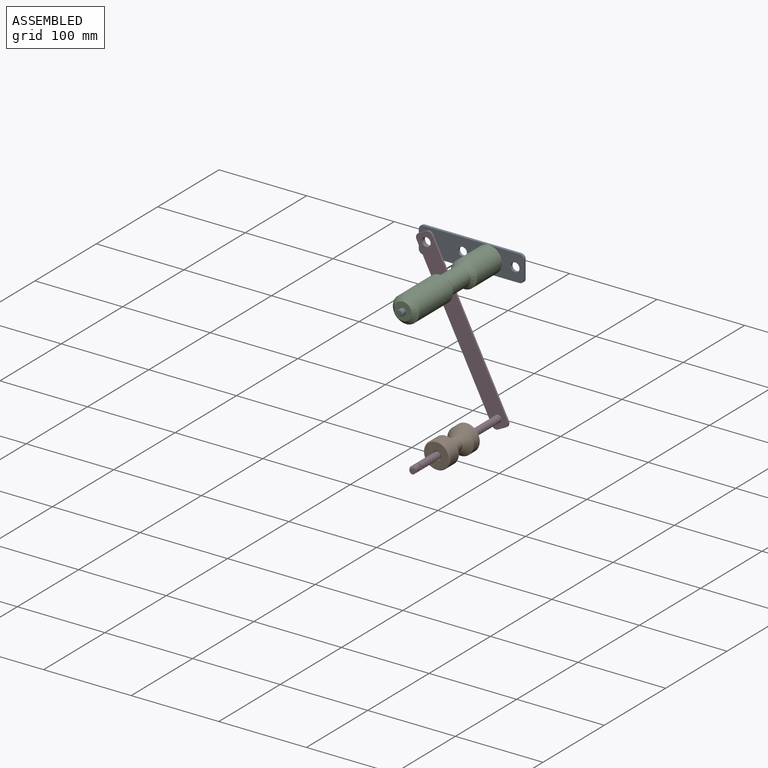
[diagram: assembled view]
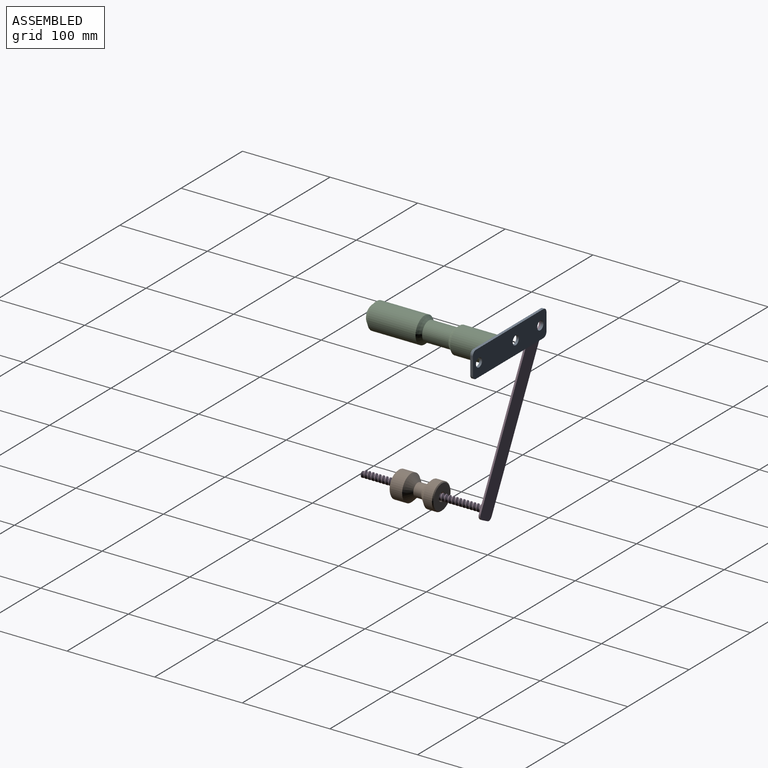
[diagram: assembled view, second angle]
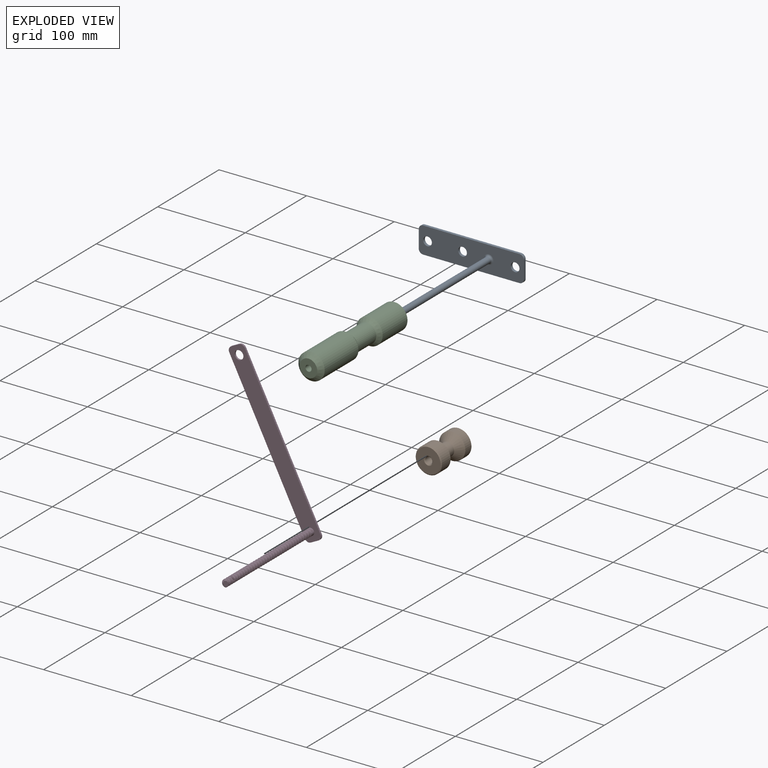
[diagram: exploded view]
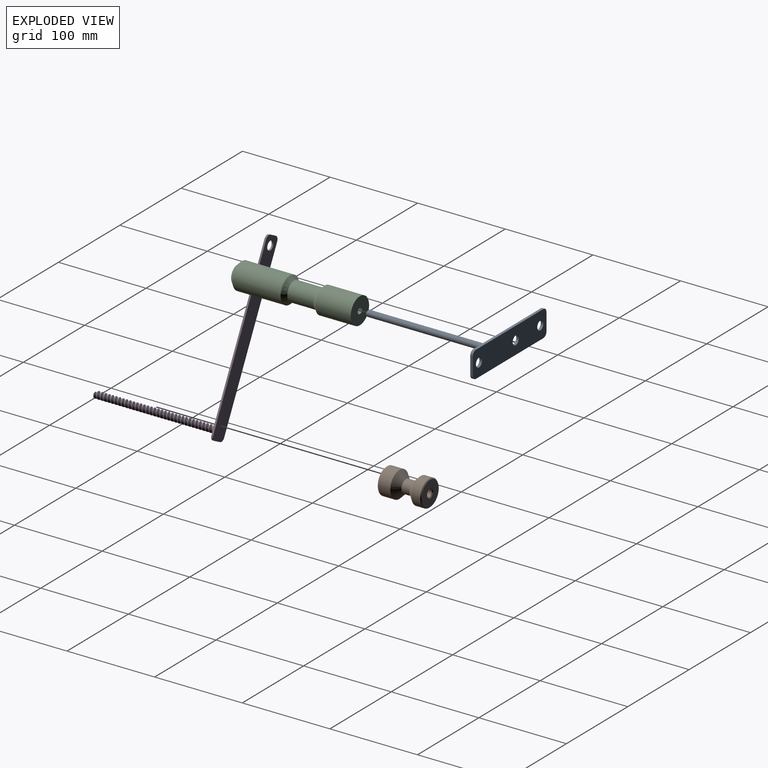
[diagram: exploded view, second angle]
ASSEMBLY  parts=4 mates=3
PART A: 17 faces, bbox 120x148x30 mm
  f0: cylinder r=3.5mm len=142mm, axis (0,1,0), area 3122.7mm2, adj f15,f16
  f1: plane 5x5mm, normal (0,-1,0), area 19.6mm2, adj f16
  f2: plane 20x3mm, normal (1,0,0), area 60mm2, adj f3,f12,f13,f14
  f3: cylinder r=5mm len=5mm, axis (0,1,0), area 23.6mm2, adj f2,f4,f13,f14
  f4: plane 110x3mm, normal (0,0,1), area 330mm2, adj f3,f5,f13,f14
  f5: cylinder r=5mm len=5mm, axis (0,1,0), area 23.6mm2, adj f4,f6,f13,f14
  f6: plane 20x3mm, normal (-1,0,0), area 60mm2, adj f5,f7,f13,f14
  f7: cylinder r=5mm len=5mm, axis (0,1,0), area 23.6mm2, adj f6,f8,f13,f14
  f8: plane 110x3mm, normal (0,0,-1), area 330mm2, adj f7,f12,f13,f14
  f9: cylinder r=5mm len=10mm, axis (0,1,0), area 94.2mm2, adj f13,f14
  f10: cylinder r=5mm len=10mm, axis (0,1,0), area 94.2mm2, adj f13,f14
  f11: cylinder r=5mm len=10mm, axis (0,1,0), area 94.2mm2, adj f13,f14
  f12: cylinder r=5mm len=5mm, axis (0,1,0), area 23.6mm2, adj f2,f8,f13,f14
  f13: plane 120x30mm, normal (0,-1,0), area 3247.9mm2, adj f2,f3,f4,f5,f6,f7,f8,f9
  f14: plane 120x30mm, normal (0,1,0), area 3342.9mm2, adj f2,f3,f4,f5,f6,f7,f8,f9
  f15: torus R=5.5mm, axis (0,-1,0), area 83.4mm2, adj f0,f13
  f16: cone r=2.5mm half-angle=45deg, axis (0,1,0), area 26.7mm2, adj f0,f1
PART B: 12 faces, bbox 30x50x30 mm
  f0: cylinder r=15mm len=30mm, axis (0,1,0), area 942.5mm2, adj f5,f8
  f1: cylinder r=4mm len=48mm, axis (0,1,0), area 1206.4mm2, adj f10,f11
  f2: cylinder r=15mm len=30mm, axis (0,1,0), area 1319.5mm2, adj f6,f9
  f3: plane 28x28mm, normal (0,-1,0), area 537.2mm2, adj f6,f11
  f4: plane 28x28mm, normal (0,1,0), area 537.2mm2, adj f5,f10
  f5: cone r=15mm half-angle=45deg, axis (0,-1,0), area 128.8mm2, adj f0,f4
  f6: cone r=14mm half-angle=45deg, axis (0,1,0), area 128.8mm2, adj f2,f3
  f7: cylinder r=7.5mm len=15mm, axis (0,1,0), area 424.1mm2, adj f8,f9
  f8: cone r=15.5mm half-angle=45deg, axis (0,1,0), area 749.7mm2, adj f0,f7
  f9: cone r=7.5mm half-angle=45deg, axis (0,-1,0), area 749.7mm2, adj f2,f7
  f10: cone r=5mm half-angle=45deg, axis (0,1,0), area 40mm2, adj f1,f4
  f11: cone r=4mm half-angle=45deg, axis (0,-1,0), area 40mm2, adj f1,f3
PART C: 9 faces, bbox 30x140x30 mm
  f0: cylinder r=15mm len=40.47mm, axis (0,1,0), area 3813.8mm2, adj f4,f6
  f1: cylinder r=3.5mm len=140mm, axis (0,1,0), area 3078.8mm2, adj f3,f4
  f2: cylinder r=15mm len=55mm, axis (0,1,0), area 5183.6mm2, adj f7,f8
  f3: plane 20x20mm, normal (0,-1,0), area 275.7mm2, adj f1,f8
  f4: plane 30x30mm, normal (0,1,0), area 668.4mm2, adj f0,f1
  f5: cylinder r=11mm len=30mm, axis (0,1,0), area 2073.5mm2, adj f6,f7
  f6: cone r=19.39mm half-angle=40deg, axis (0,1,0), area 508.3mm2, adj f0,f5
  f7: cone r=11mm half-angle=40deg, axis (0,-1,0), area 508.3mm2, adj f2,f5
  f8: cone r=10mm half-angle=45deg, axis (0,1,0), area 555.4mm2, adj f2,f3
PART D: 50 faces, bbox 21.4x145.4x201.4 mm
  f0: cylinder r=4mm len=8mm, axis (0,1,0), area 81.7mm2, adj f1,f36,f37,f38,f48
  f1: cylinder r=4mm len=8mm, axis (0,1,0), area 25.1mm2, adj f0,f2,f37,f38
  f2: cylinder r=4mm len=8mm, axis (0,1,0), area 25.1mm2, adj f1,f3,f37,f38
  f3: cylinder r=4mm len=8mm, axis (0,1,0), area 25.1mm2, adj f2,f4,f37,f38
  f4: cylinder r=4mm len=8mm, axis (0,1,0), area 25.1mm2, adj f3,f5,f37,f38
  f5: cylinder r=4mm len=8mm, axis (0,1,0), area 25.1mm2, adj f4,f6,f37,f38
  f6: cylinder r=4mm len=8mm, axis (0,1,0), area 25.1mm2, adj f5,f7,f37,f38
  f7: cylinder r=4mm len=8mm, axis (0,1,0), area 25.1mm2, adj f6,f8,f37,f38
  f8: cylinder r=4mm len=8mm, axis (0,1,0), area 25.1mm2, adj f7,f9,f37,f38
  f9: cylinder r=4mm len=8mm, axis (0,1,0), area 25.1mm2, adj f8,f10,f37,f38
  f10: cylinder r=4mm len=8mm, axis (0,1,0), area 25.1mm2, adj f9,f11,f37,f38
  f11: cylinder r=4mm len=8mm, axis (0,1,0), area 25.1mm2, adj f10,f12,f37,f38
  f12: cylinder r=4mm len=8mm, axis (0,1,0), area 25.1mm2, adj f11,f13,f37,f38
  f13: cylinder r=4mm len=8mm, axis (0,1,0), area 25.1mm2, adj f12,f14,f37,f38
  f14: cylinder r=4mm len=8mm, axis (0,1,0), area 25.1mm2, adj f13,f15,f37,f38
  f15: cylinder r=4mm len=8mm, axis (0,1,0), area 25.1mm2, adj f14,f16,f37,f38
  f16: cylinder r=4mm len=8mm, axis (0,1,0), area 25.1mm2, adj f15,f17,f37,f38
  f17: cylinder r=4mm len=8mm, axis (0,1,0), area 25.1mm2, adj f16,f18,f37,f38
  f18: cylinder r=4mm len=8mm, axis (0,1,0), area 25.1mm2, adj f17,f19,f37,f38
  f19: cylinder r=4mm len=8mm, axis (0,1,0), area 25.1mm2, adj f18,f20,f37,f38
  f20: cylinder r=4mm len=8mm, axis (0,1,0), area 25.1mm2, adj f19,f21,f37,f38
  f21: cylinder r=4mm len=8mm, axis (0,1,0), area 25.1mm2, adj f20,f22,f37,f38
  f22: cylinder r=4mm len=8mm, axis (0,1,0), area 25.1mm2, adj f21,f23,f37,f38
  f23: cylinder r=4mm len=8mm, axis (0,1,0), area 25.1mm2, adj f22,f24,f37,f38
  f24: cylinder r=4mm len=8mm, axis (0,1,0), area 25.1mm2, adj f23,f25,f37,f38
  f25: cylinder r=4mm len=8mm, axis (0,1,0), area 25.1mm2, adj f24,f26,f37,f38
  f26: cylinder r=4mm len=8mm, axis (0,1,0), area 25.1mm2, adj f25,f27,f37,f38
  f27: cylinder r=4mm len=8mm, axis (0,1,0), area 25.1mm2, adj f26,f28,f37,f38
  f28: cylinder r=4mm len=8mm, axis (0,1,0), area 25.1mm2, adj f27,f29,f37,f38
  f29: cylinder r=4mm len=8mm, axis (0,1,0), area 25.1mm2, adj f28,f30,f37,f38
  f30: cylinder r=4mm len=8mm, axis (0,1,0), area 25.1mm2, adj f29,f31,f37,f38
  f31: cylinder r=4mm len=8mm, axis (0,1,0), area 25.1mm2, adj f30,f32,f37,f38
  f32: cylinder r=4mm len=8mm, axis (0,1,0), area 25.1mm2, adj f31,f33,f37,f38
  f33: cylinder r=4mm len=8mm, axis (0,1,0), area 25.1mm2, adj f32,f34,f37,f38
  f34: cylinder r=4mm len=8mm, axis (0,1,0), area 15.7mm2, adj f33,f35,f37,f38
  f35: plane 7.92x7.91mm, normal (0,-1,0), area 31.1mm2, adj f34,f37,f38
  f36: plane 3x2.6mm, normal (0,0,1), area 3.9mm2, adj f0,f37,f38
  f37: bspline ~140.83x9.24mm, area 1794.9mm2, adj f0,f1,f2,f3,f4,f5,f6,f7
  f38: bspline ~139.5x9.24mm, area 1778.3mm2, adj f0,f1,f2,f3,f4,f5,f6,f7
  f39: plane 10x2mm, normal (0,0,1), area 20mm2, adj f40,f47,f48,f49
  f40: cylinder r=5mm len=5mm, axis (0,1,0), area 15.7mm2, adj f39,f41,f48,f49
  f41: plane 190x2mm, normal (-1,0,0), area 380mm2, adj f40,f42,f48,f49
  f42: cylinder r=5mm len=5mm, axis (0,1,0), area 15.7mm2, adj f41,f43,f48,f49
  f43: plane 10x2mm, normal (0,0,-1), area 20mm2, adj f42,f44,f48,f49
  f44: cylinder r=5mm len=5mm, axis (0,1,0), area 15.7mm2, adj f43,f45,f48,f49
  f45: plane 190x2mm, normal (1,0,0), area 380mm2, adj f44,f47,f48,f49
  f46: cylinder r=5mm len=10mm, axis (0,1,0), area 62.8mm2, adj f48,f49
  f47: cylinder r=5mm len=5mm, axis (0,1,0), area 15.7mm2, adj f39,f45,f48,f49
  f48: plane 200x20mm, normal (0,-1,0), area 3849.7mm2, adj f0,f39,f40,f41,f42,f43,f44,f45
  f49: plane 200x20mm, normal (0,1,0), area 3900mm2, adj f39,f40,f41,f42,f43,f44,f45,f46
PLACE A t=(-591.64,-30,10)mm
PLACE B rot(axis=(0,-1,0),27deg) t=(-594.71,-85,-121.16)mm
PLACE C rot(axis=(0,-1,0),180deg) t=(-605.39,-33,1.77)mm
PLACE D rot(axis=(0,-1,0),27deg) t=(-667.27,-33,-140.99)mm
MATE fastened C.f0 <-> A.f0  axis (0,1,0) through (-558.82,-33,25)mm
MATE cylindrical B.f0 <-> D.f0  axis (0,1,0) through (-547.02,-85,-135.34)mm
MATE revolute D.f46 <-> A.f11  axis (0,1,0) through (-628.82,-33,25)mm
